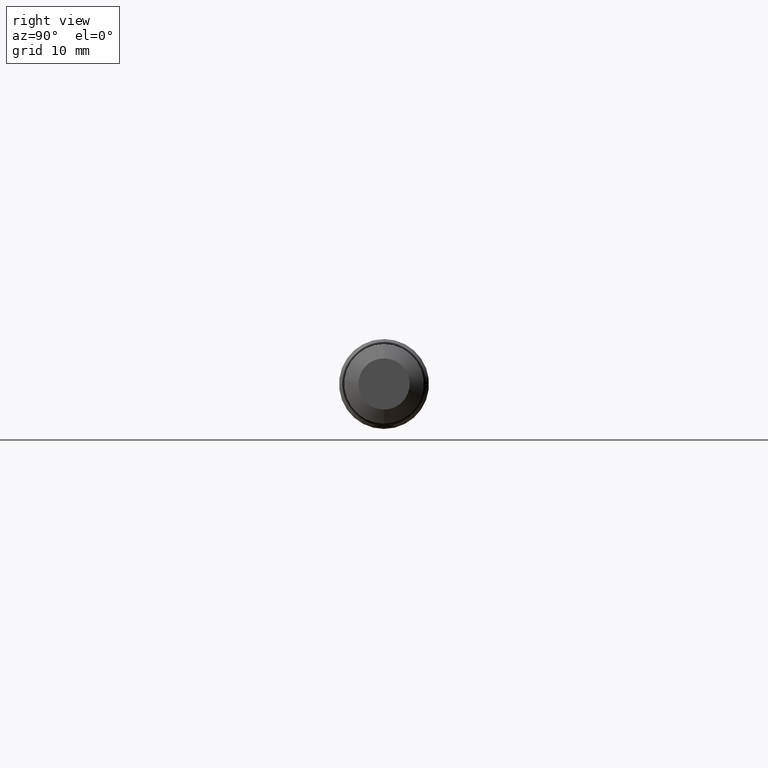
[diagram: clean part render]
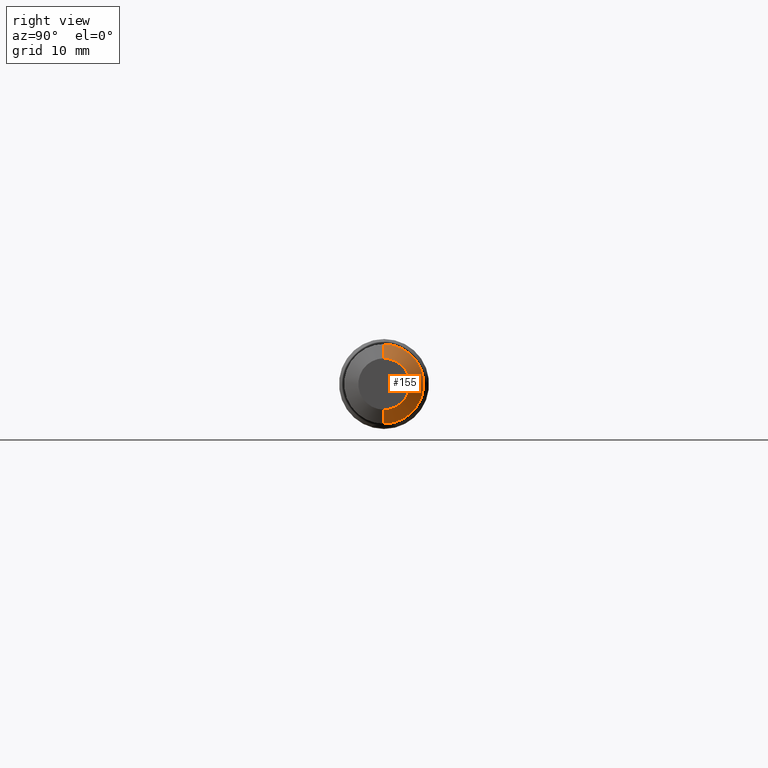
[diagram: same view with one face highlighted and labeled with its STEP entity id]
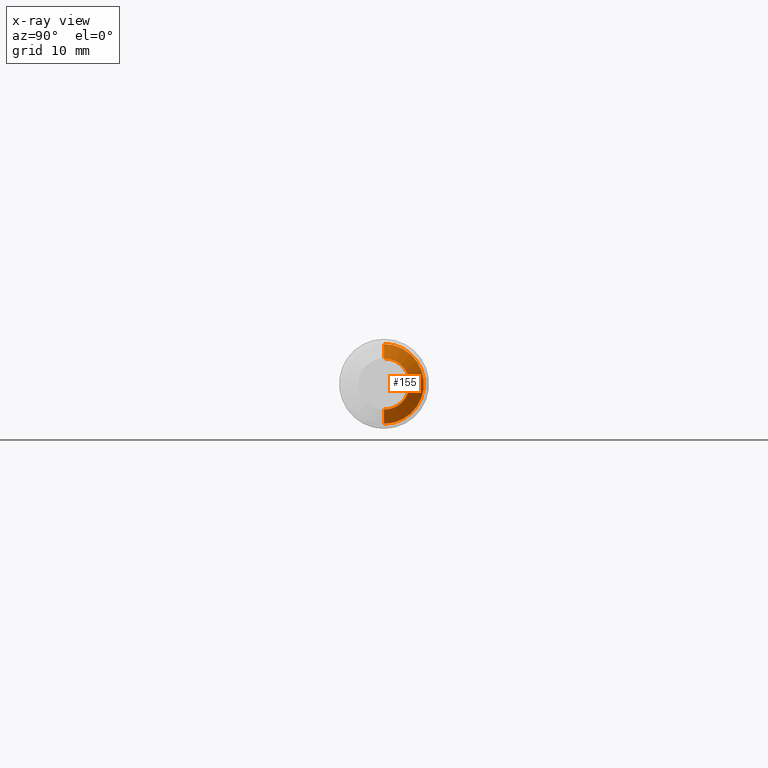
[diagram: x-ray of the same camera — body ghosted, the highlighted face saturated]
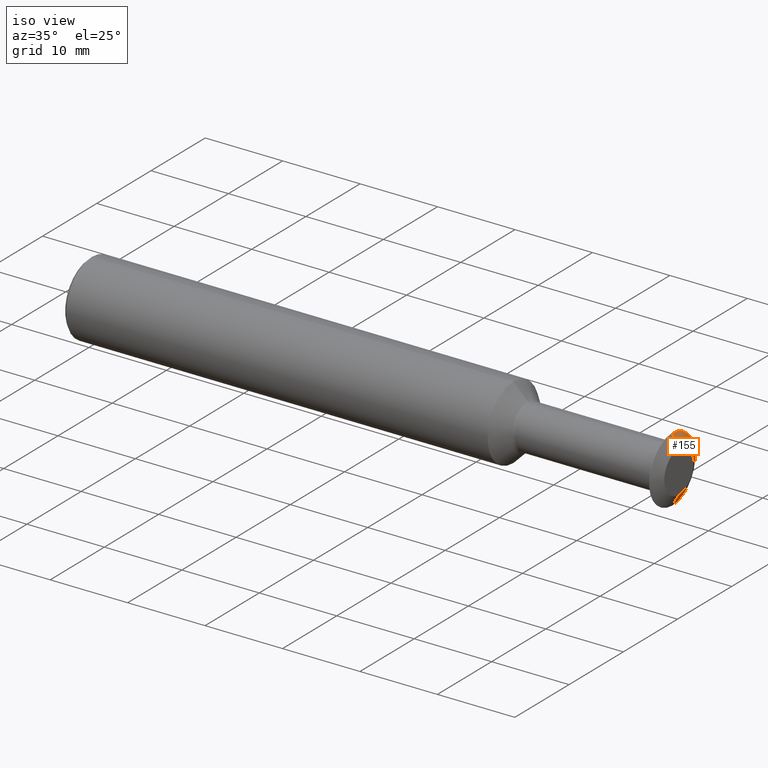
[diagram: same view with one face highlighted and labeled with its STEP entity id]
A machine part, right view. The second image highlights one B-rep face of the part: STEP entity #155.
The next image is the same camera in x-ray: the body ghosted, the highlighted face saturated — about 0% of this face is hidden behind the body in this view.
A second angle (iso view) of the same face is appended — the face is thin or edge-on in the first view.
In plain terms, the highlighted conical surface has half-angle 60.15 deg.
Its self-contained STEP definition (entity closure, byte-faithful):
#6 = CARTESIAN_POINT ( 'NONE',  ( 3.000000000000000444, 0.0000000000000000000, 0.0000000000000000000 ) ) ;
#21 = DIRECTION ( 'NONE',  ( 0.0000000000000000000, 0.0000000000000000000, 1.000000000000000000 ) ) ;
#24 = CIRCLE ( 'NONE', #211, 0.1659999999999994813 ) ;
#56 = CIRCLE ( 'NONE', #448, 0.1069999999999994428 ) ;
#58 = VERTEX_POINT ( 'NONE', #439 ) ;
#66 = CARTESIAN_POINT ( 'NONE',  ( 3.000000000000000444, 1.310372075087661178E-17, -0.1069999999999994428 ) ) ;
#72 = CARTESIAN_POINT ( 'NONE',  ( 2.966141972616872735, 2.032913686584599974E-17, -0.1659999999999994813 ) ) ;
#101 = DIRECTION ( 'NONE',  ( -1.000000000000000000, -0.0000000000000000000, -0.0000000000000000000 ) ) ;
#115 = DIRECTION ( 'NONE',  ( -0.4977310399126227969, 1.062174661273168978E-16, -0.8673314314075668552 ) ) ;
#117 = EDGE_LOOP ( 'NONE', ( #363, #327, #475, #160 ) ) ;
#123 = CARTESIAN_POINT ( 'NONE',  ( 2.966141972616872735, 0.0000000000000000000, 0.0000000000000000000 ) ) ;
#150 = DIRECTION ( 'NONE',  ( 0.0000000000000000000, 0.0000000000000000000, 1.000000000000000000 ) ) ;
#154 = EDGE_CURVE ( 'NONE', #341, #354, #474, .T. ) ;
#155 = ADVANCED_FACE ( 'NONE', ( #455 ), #467, .T. ) ;
#160 = ORIENTED_EDGE ( 'NONE', *, *, #154, .F. ) ;
#211 = AXIS2_PLACEMENT_3D ( 'NONE', #123, #299, #150 ) ;
#259 = CARTESIAN_POINT ( 'NONE',  ( 3.000000000000000444, 0.0000000000000000000, 0.1069999999999994428 ) ) ;
#267 = DIRECTION ( 'NONE',  ( -0.4977310399126227969, 0.0000000000000000000, 0.8673314314075668552 ) ) ;
#291 = LINE ( 'NONE', #66, #393 ) ;
#292 = CARTESIAN_POINT ( 'NONE',  ( 3.000000000000000444, 0.0000000000000000000, 0.0000000000000000000 ) ) ;
#297 = CARTESIAN_POINT ( 'NONE',  ( 3.000000000000000444, 0.0000000000000000000, 0.1069999999999994428 ) ) ;
#299 = DIRECTION ( 'NONE',  ( -1.000000000000000000, -0.0000000000000000000, -0.0000000000000000000 ) ) ;
#319 = VERTEX_POINT ( 'NONE', #72 ) ;
#326 = DIRECTION ( 'NONE',  ( 0.0000000000000000000, 0.0000000000000000000, 1.000000000000000000 ) ) ;
#327 = ORIENTED_EDGE ( 'NONE', *, *, #391, .T. ) ;
#341 = VERTEX_POINT ( 'NONE', #297 ) ;
#346 = VECTOR ( 'NONE', #267, 39.37007874015748143 ) ;
#354 = VERTEX_POINT ( 'NONE', #425 ) ;
#363 = ORIENTED_EDGE ( 'NONE', *, *, #440, .T. ) ;
#391 = EDGE_CURVE ( 'NONE', #58, #319, #291, .T. ) ;
#393 = VECTOR ( 'NONE', #115, 39.37007874015748143 ) ;
#425 = CARTESIAN_POINT ( 'NONE',  ( 2.966141972616872735, 0.0000000000000000000, 0.1659999999999994813 ) ) ;
#433 = AXIS2_PLACEMENT_3D ( 'NONE', #292, #101, #326 ) ;
#439 = CARTESIAN_POINT ( 'NONE',  ( 3.000000000000000444, 1.671642880836130345E-17, -0.1069999999999994428 ) ) ;
#440 = EDGE_CURVE ( 'NONE', #341, #58, #56, .T. ) ;
#448 = AXIS2_PLACEMENT_3D ( 'NONE', #6, #466, #21 ) ;
#455 = FACE_OUTER_BOUND ( 'NONE', #117, .T. ) ;
#465 = EDGE_CURVE ( 'NONE', #354, #319, #24, .T. ) ;
#466 = DIRECTION ( 'NONE',  ( -1.000000000000000000, -0.0000000000000000000, -0.0000000000000000000 ) ) ;
#467 = CONICAL_SURFACE ( 'NONE', #433, 0.1069999999999994428, 1.049815545074576972 ) ;
#474 = LINE ( 'NONE', #259, #346 ) ;
#475 = ORIENTED_EDGE ( 'NONE', *, *, #465, .F. ) ;